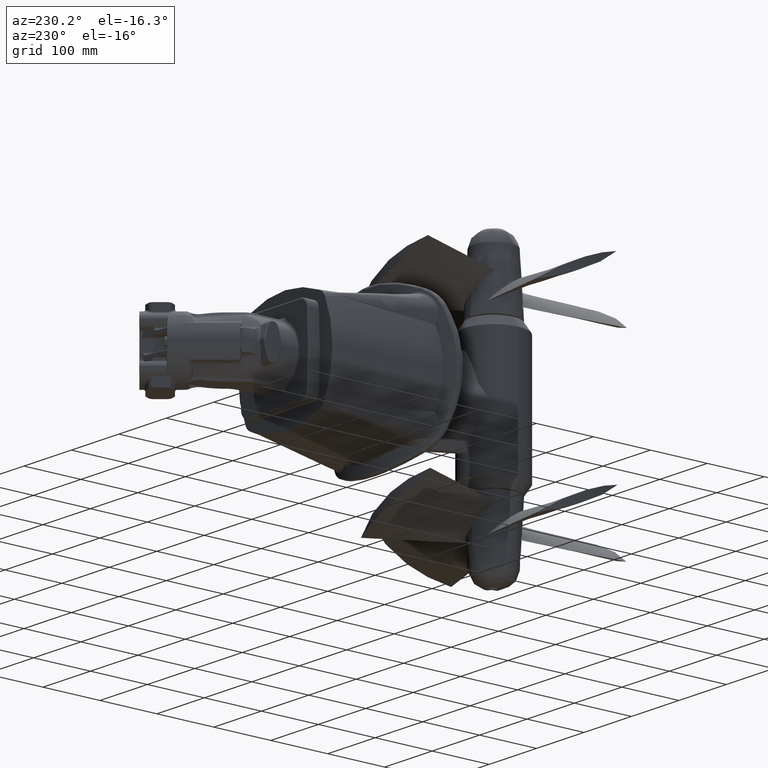
[diagram: clean part render]
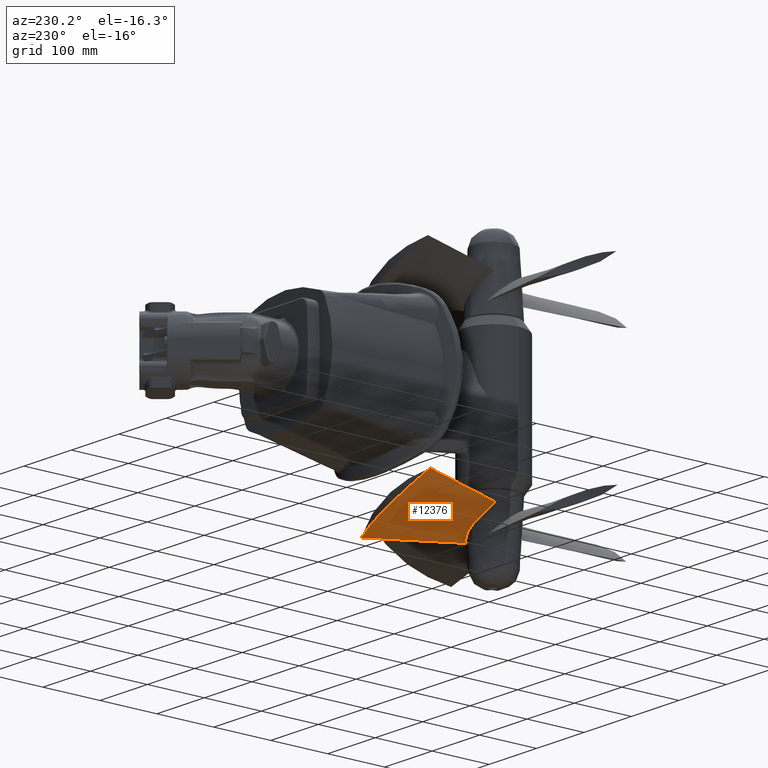
[diagram: same view with one face highlighted and labeled with its STEP entity id]
A machine part, auxiliary view. The second image highlights one B-rep face of the part: STEP entity #12376.
In plain terms, the highlighted face is a freeform B-spline surface patch.
Its self-contained STEP definition (entity closure, byte-faithful):
#85=B_SPLINE_SURFACE_WITH_KNOTS('',3,3,((#51300,#51301,#51302,#51303),(#51304,
#51305,#51306,#51307),(#51308,#51309,#51310,#51311),(#51312,#51313,#51314,
#51315),(#51316,#51317,#51318,#51319)),.UNSPECIFIED.,.F.,.F.,.F.,(4,1,4),
(4,4),(0.,0.571428571428571,1.),(0.21885541195284,0.944592000267786),
 .UNSPECIFIED.);
#1237=B_SPLINE_CURVE_WITH_KNOTS('',3,(#51290,#51291,#51292,#51293,#51294,
#51295,#51296,#51297,#51298,#51299),.UNSPECIFIED.,.F.,.F.,(4,2,2,2,4),(0.,
5.6324478060933,8.16101108889264,11.4348192330968,16.3065689882987),
 .UNSPECIFIED.);
#1238=B_SPLINE_CURVE_WITH_KNOTS('',3,(#51321,#51322,#51323,#51324),
 .UNSPECIFIED.,.F.,.F.,(4,4),(0.21885541195284,0.823709025792352),
 .UNSPECIFIED.);
#1239=B_SPLINE_CURVE_WITH_KNOTS('',3,(#51326,#51327,#51328,#51329,#51330,
#51331,#51332,#51333,#51334,#51335,#51336,#51337),.UNSPECIFIED.,.F.,.F.,
(4,2,2,2,2,4),(0.,2.34270139079748,4.43021600263915,6.38012052592439,7.45306895272659,
8.51715156647386),.UNSPECIFIED.);
#1240=B_SPLINE_CURVE_WITH_KNOTS('',3,(#51338,#51339,#51340,#51341),
 .UNSPECIFIED.,.F.,.F.,(4,4),(0.220585843450594,0.81592196059834),
 .UNSPECIFIED.);
#2919=FACE_OUTER_BOUND('',#3734,.T.);
#3734=EDGE_LOOP('',(#10565,#10566,#10567,#10568));
#5423=VERTEX_POINT('',#51278);
#5424=VERTEX_POINT('',#51279);
#5425=VERTEX_POINT('',#51320);
#5426=VERTEX_POINT('',#51325);
#7154=EDGE_CURVE('',#5424,#5423,#1237,.T.);
#7155=EDGE_CURVE('',#5425,#5423,#1238,.T.);
#7156=EDGE_CURVE('',#5426,#5425,#1239,.T.);
#7157=EDGE_CURVE('',#5426,#5424,#1240,.T.);
#10565=ORIENTED_EDGE('',*,*,#7154,.T.);
#10566=ORIENTED_EDGE('',*,*,#7155,.F.);
#10567=ORIENTED_EDGE('',*,*,#7156,.F.);
#10568=ORIENTED_EDGE('',*,*,#7157,.T.);
#12376=ADVANCED_FACE('',(#2919),#85,.T.);
#51278=CARTESIAN_POINT('',(-443.561795105866,677.850417084178,-196.970445568851));
#51279=CARTESIAN_POINT('',(-587.758460330125,676.538245681495,-130.649670759813));
#51290=CARTESIAN_POINT('Ctrl Pts',(-587.758460330125,676.538245681496,-130.649670759813));
#51291=CARTESIAN_POINT('Ctrl Pts',(-573.45820921594,682.629890261087,-141.180044755078));
#51292=CARTESIAN_POINT('Ctrl Pts',(-557.802783399419,687.185504471669,-150.638343458582));
#51293=CARTESIAN_POINT('Ctrl Pts',(-533.826514199503,690.68800148014,-163.055044759131));
#51294=CARTESIAN_POINT('Ctrl Pts',(-526.24299397861,691.341065620611,-166.70606047005));
#51295=CARTESIAN_POINT('Ctrl Pts',(-508.592392600896,691.760946014824,-174.64194338813));
#51296=CARTESIAN_POINT('Ctrl Pts',(-498.482136525062,691.208653377488,-178.783930480184));
#51297=CARTESIAN_POINT('Ctrl Pts',(-473.243897492933,687.720079960862,-188.221316413031));
#51298=CARTESIAN_POINT('Ctrl Pts',(-458.17074229399,683.761825849367,-193.063541457243));
#51299=CARTESIAN_POINT('Ctrl Pts',(-443.561795105866,677.850417084178,-196.970445568851));
#51300=CARTESIAN_POINT('Ctrl Pts',(-484.79166290891,526.991610168483,-185.76858752693));
#51301=CARTESIAN_POINT('Ctrl Pts',(-471.922640053694,574.132085521885,-189.265008321947));
#51302=CARTESIAN_POINT('Ctrl Pts',(-443.694523136273,677.245687274959,-196.934384319227));
#51303=CARTESIAN_POINT('Ctrl Pts',(-439.754728462037,691.845388048735,-198.004798148006));
#51304=CARTESIAN_POINT('Ctrl Pts',(-498.486267225386,526.991610168483,-180.431725947052));
#51305=CARTESIAN_POINT('Ctrl Pts',(-490.530631324382,574.132085521885,-183.132008678668));
#51306=CARTESIAN_POINT('Ctrl Pts',(-473.082318177222,677.245687274959,-189.057562831008));
#51307=CARTESIAN_POINT('Ctrl Pts',(-470.646735281336,691.845388048735,-189.884242497727));
#51308=CARTESIAN_POINT('Ctrl Pts',(-521.011730219932,526.991610168483,-167.566544867954));
#51309=CARTESIAN_POINT('Ctrl Pts',(-521.682186819868,574.132085521885,-168.418939132351));
#51310=CARTESIAN_POINT('Ctrl Pts',(-523.15197040172,677.245687274959,-170.287874235877));
#51311=CARTESIAN_POINT('Ctrl Pts',(-523.357227737219,691.845388048735,-170.548830986129));
#51312=CARTESIAN_POINT('Ctrl Pts',(-539.30266731037,526.991610168483,-149.610086089764));
#51313=CARTESIAN_POINT('Ctrl Pts',(-548.664106360314,574.132085521885,-147.680420723273));
#51314=CARTESIAN_POINT('Ctrl Pts',(-569.198884567448,677.245687274959,-143.447502083009));
#51315=CARTESIAN_POINT('Ctrl Pts',(-572.064847906475,691.845388048736,-142.856743528961));
#51316=CARTESIAN_POINT('Ctrl Pts',(-546.178257304974,526.991610168483,-141.189446703224));
#51317=CARTESIAN_POINT('Ctrl Pts',(-559.270284299257,574.132085521885,-137.870871488924));
#51318=CARTESIAN_POINT('Ctrl Pts',(-587.987559327708,677.245687274959,-130.591598602206));
#51319=CARTESIAN_POINT('Ctrl Pts',(-591.995625737049,691.845388048736,-129.575631414764));
#51320=CARTESIAN_POINT('',(-484.79166290891,526.991610168483,-185.76858752693));
#51321=CARTESIAN_POINT('Ctrl Pts',(-484.79166290891,526.991610168483,-185.76858752693));
#51322=CARTESIAN_POINT('Ctrl Pts',(-474.066180542597,566.280089397319,-188.682623814228));
#51323=CARTESIAN_POINT('Ctrl Pts',(-452.672081231197,644.448195403518,-194.495246463563));
#51324=CARTESIAN_POINT('Ctrl Pts',(-443.561795105866,677.850417084178,-196.970445568851));
#51325=CARTESIAN_POINT('',(-546.272172344547,527.329765235887,-141.165641060086));
#51326=CARTESIAN_POINT('Ctrl Pts',(-546.272172344547,527.329765235887,-141.165641060086));
#51327=CARTESIAN_POINT('Ctrl Pts',(-542.72717825755,531.614951385064,-146.647497497006));
#51328=CARTESIAN_POINT('Ctrl Pts',(-538.170132980213,535.350303637153,-151.750898558882));
#51329=CARTESIAN_POINT('Ctrl Pts',(-527.857458339738,540.343320467291,-161.002343071911));
#51330=CARTESIAN_POINT('Ctrl Pts',(-522.390728402773,541.774785736315,-165.086431221917));
#51331=CARTESIAN_POINT('Ctrl Pts',(-511.19952252962,542.09869226507,-172.402217690535));
#51332=CARTESIAN_POINT('Ctrl Pts',(-505.620143162214,541.144269714623,-175.60242346198));
#51333=CARTESIAN_POINT('Ctrl Pts',(-497.340489978126,537.646643342544,-179.934093397582));
#51334=CARTESIAN_POINT('Ctrl Pts',(-494.50854759421,536.023521523215,-181.330741242028));
#51335=CARTESIAN_POINT('Ctrl Pts',(-489.259882768024,532.021771692088,-183.805657377819));
#51336=CARTESIAN_POINT('Ctrl Pts',(-486.869714764189,529.67173045198,-184.872415006643));
#51337=CARTESIAN_POINT('Ctrl Pts',(-484.79166290891,526.991610168483,-185.76858752693));
#51338=CARTESIAN_POINT('Ctrl Pts',(-546.272172344546,527.329765235887,-141.165641060086));
#51339=CARTESIAN_POINT('Ctrl Pts',(-557.07275816507,566.218319974898,-138.427901791785));
#51340=CARTESIAN_POINT('Ctrl Pts',(-578.323241272688,642.540739471448,-133.0413160046));
#51341=CARTESIAN_POINT('Ctrl Pts',(-587.758460330125,676.538245681495,-130.649670759813));